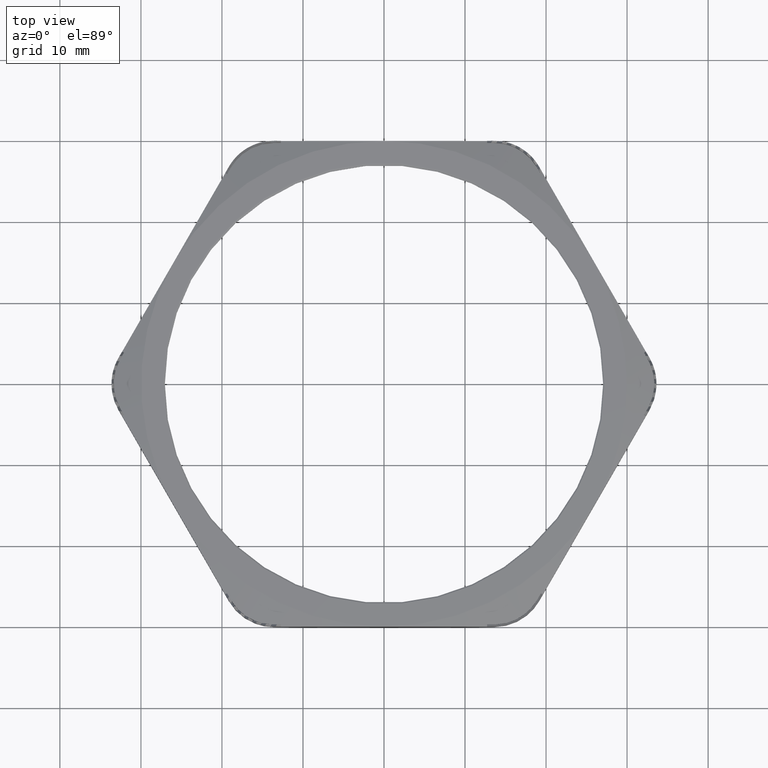
[diagram: clean part render]
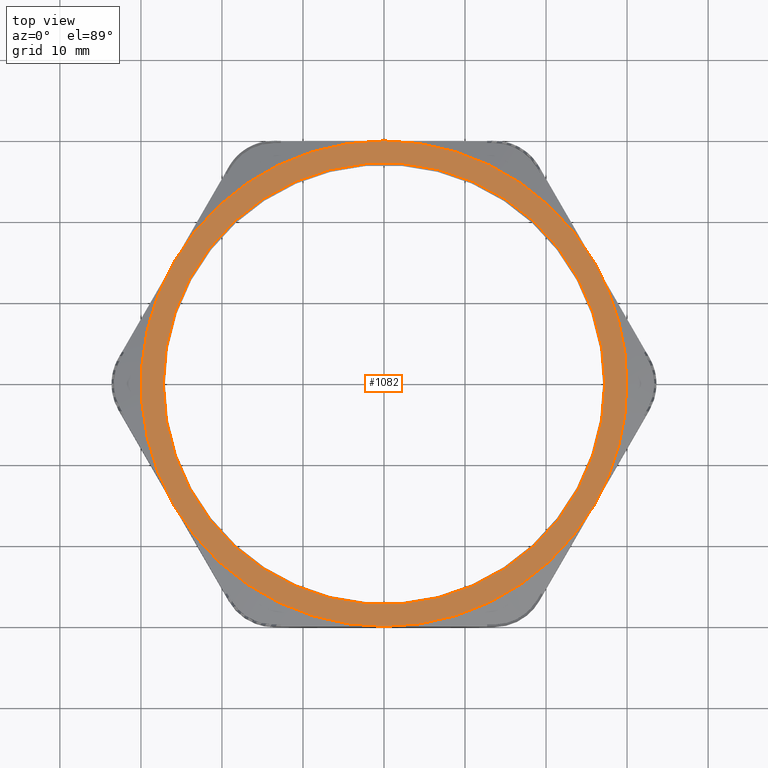
[diagram: same view with one face highlighted and labeled with its STEP entity id]
A machine part, top view. The second image highlights one B-rep face of the part: STEP entity #1082.
In plain terms, the highlighted planar face has unit normal (0, 0, -1).
Its self-contained STEP definition (entity closure, byte-faithful):
#121 = VERTEX_POINT ( 'NONE', #2904 ) ;
#209 = VERTEX_POINT ( 'NONE', #3067 ) ;
#256 = EDGE_CURVE ( 'NONE', #258, #209, #3186, .T. ) ;
#258 = VERTEX_POINT ( 'NONE', #3176 ) ;
#282 = VERTEX_POINT ( 'NONE', #3259 ) ;
#284 = VERTEX_POINT ( 'NONE', #3253 ) ;
#287 = EDGE_CURVE ( 'NONE', #282, #284, #3246, .T. ) ;
#654 = VERTEX_POINT ( 'NONE', #3963 ) ;
#719 = VERTEX_POINT ( 'NONE', #4080 ) ;
#759 = VERTEX_POINT ( 'NONE', #4156 ) ;
#851 = VERTEX_POINT ( 'NONE', #4357 ) ;
#1058 = ORIENTED_EDGE ( 'NONE', *, *, #287, .T. ) ;
#1059 = ORIENTED_EDGE ( 'NONE', *, *, #1060, .T. ) ;
#1060 = EDGE_CURVE ( 'NONE', #284, #282, #4816, .T. ) ;
#1061 = EDGE_LOOP ( 'NONE', ( #1062, #1064, #1066, #1068, #1070, #1130, #1131 ) ) ;
#1062 = ORIENTED_EDGE ( 'NONE', *, *, #1063, .F. ) ;
#1063 = EDGE_CURVE ( 'NONE', #121, #851, #4811, .T. ) ;
#1064 = ORIENTED_EDGE ( 'NONE', *, *, #1065, .F. ) ;
#1065 = EDGE_CURVE ( 'NONE', #654, #121, #4805, .T. ) ;
#1066 = ORIENTED_EDGE ( 'NONE', *, *, #1067, .F. ) ;
#1067 = EDGE_CURVE ( 'NONE', #719, #654, #4845, .T. ) ;
#1068 = ORIENTED_EDGE ( 'NONE', *, *, #1069, .F. ) ;
#1069 = EDGE_CURVE ( 'NONE', #759, #719, #4841, .T. ) ;
#1070 = ORIENTED_EDGE ( 'NONE', *, *, #1129, .F. ) ;
#1082 = ADVANCED_FACE ( 'NONE', ( #4850, #4849 ), #4874, .F. ) ;
#1083 = EDGE_LOOP ( 'NONE', ( #1058, #1059 ) ) ;
#1129 = EDGE_CURVE ( 'NONE', #209, #759, #4960, .T. ) ;
#1130 = ORIENTED_EDGE ( 'NONE', *, *, #256, .F. ) ;
#1131 = ORIENTED_EDGE ( 'NONE', *, *, #1132, .T. ) ;
#1132 = EDGE_CURVE ( 'NONE', #258, #851, #4956, .T. ) ;
#2904 = CARTESIAN_POINT ( 'NONE',  ( -1.021909976465637400, 0.5899999999999999700, 0.2000000000000000100 ) ) ;
#3067 = CARTESIAN_POINT ( 'NONE',  ( 1.179999999999999700, 0.0000000000000000000, 0.2000000000000000100 ) ) ;
#3176 = CARTESIAN_POINT ( 'NONE',  ( 1.021909976465637600, 0.5899999999999999700, 0.2000000000000000100 ) ) ;
#3182 = DIRECTION ( 'NONE',  ( -1.000000000000000000, 0.0000000000000000000, 0.0000000000000000000 ) ) ;
#3183 = DIRECTION ( 'NONE',  ( 0.0000000000000000000, 0.0000000000000000000, -1.000000000000000000 ) ) ;
#3184 = CARTESIAN_POINT ( 'NONE',  ( 0.0000000000000000000, 0.0000000000000000000, 0.2000000000000000100 ) ) ;
#3185 = AXIS2_PLACEMENT_3D ( 'NONE', #3184, #3183, #3182 ) ;
#3186 = CIRCLE ( 'NONE', #3185, 1.179999999999999700 ) ;
#3243 = DIRECTION ( 'NONE',  ( -1.000000000000000000, 0.0000000000000000000, 0.0000000000000000000 ) ) ;
#3244 = DIRECTION ( 'NONE',  ( 0.0000000000000000000, 0.0000000000000000000, -1.000000000000000000 ) ) ;
#3245 = AXIS2_PLACEMENT_3D ( 'NONE', #3252, #3244, #3243 ) ;
#3246 = CIRCLE ( 'NONE', #3245, 1.073000000000000000 ) ;
#3252 = CARTESIAN_POINT ( 'NONE',  ( 0.0000000000000000000, 0.0000000000000000000, 0.2000000000000000100 ) ) ;
#3253 = CARTESIAN_POINT ( 'NONE',  ( 1.073000000000000000, 1.314046015485109900E-016, 0.2000000000000000100 ) ) ;
#3259 = CARTESIAN_POINT ( 'NONE',  ( -1.073000000000000000, 0.0000000000000000000, 0.2000000000000000100 ) ) ;
#3963 = CARTESIAN_POINT ( 'NONE',  ( -1.021909976465637600, -0.5899999999999994100, 0.2000000000000000100 ) ) ;
#4080 = CARTESIAN_POINT ( 'NONE',  ( 2.365849761790800100E-016, -1.179999999999999900, 0.2000000000000000100 ) ) ;
#4156 = CARTESIAN_POINT ( 'NONE',  ( 1.021909976465637200, -0.5900000000000000800, 0.2000000000000000100 ) ) ;
#4357 = CARTESIAN_POINT ( 'NONE',  ( 1.182924880895400300E-016, 1.179999999999999900, 0.2000000000000000100 ) ) ;
#4803 = CARTESIAN_POINT ( 'NONE',  ( 0.0000000000000000000, 0.0000000000000000000, 0.2000000000000000100 ) ) ;
#4804 = AXIS2_PLACEMENT_3D ( 'NONE', #4803, #4847, #4846 ) ;
#4805 = CIRCLE ( 'NONE', #4804, 1.179999999999999700 ) ;
#4806 = CARTESIAN_POINT ( 'NONE',  ( 0.0000000000000000000, 0.0000000000000000000, 0.2000000000000000100 ) ) ;
#4807 = DIRECTION ( 'NONE',  ( -1.000000000000000000, 0.0000000000000000000, 0.0000000000000000000 ) ) ;
#4808 = DIRECTION ( 'NONE',  ( 0.0000000000000000000, 0.0000000000000000000, -1.000000000000000000 ) ) ;
#4809 = CARTESIAN_POINT ( 'NONE',  ( 0.0000000000000000000, 0.0000000000000000000, 0.2000000000000000100 ) ) ;
#4810 = AXIS2_PLACEMENT_3D ( 'NONE', #4809, #4808, #4807 ) ;
#4811 = CIRCLE ( 'NONE', #4810, 1.179999999999999700 ) ;
#4812 = DIRECTION ( 'NONE',  ( -1.000000000000000000, 0.0000000000000000000, 0.0000000000000000000 ) ) ;
#4813 = DIRECTION ( 'NONE',  ( 0.0000000000000000000, 0.0000000000000000000, -1.000000000000000000 ) ) ;
#4814 = CARTESIAN_POINT ( 'NONE',  ( 0.0000000000000000000, 0.0000000000000000000, 0.2000000000000000100 ) ) ;
#4815 = AXIS2_PLACEMENT_3D ( 'NONE', #4814, #4813, #4812 ) ;
#4816 = CIRCLE ( 'NONE', #4815, 1.073000000000000000 ) ;
#4837 = DIRECTION ( 'NONE',  ( -1.000000000000000000, 0.0000000000000000000, 0.0000000000000000000 ) ) ;
#4838 = DIRECTION ( 'NONE',  ( 0.0000000000000000000, 0.0000000000000000000, -1.000000000000000000 ) ) ;
#4839 = CARTESIAN_POINT ( 'NONE',  ( 0.0000000000000000000, 0.0000000000000000000, 0.2000000000000000100 ) ) ;
#4840 = AXIS2_PLACEMENT_3D ( 'NONE', #4839, #4838, #4837 ) ;
#4841 = CIRCLE ( 'NONE', #4840, 1.179999999999999700 ) ;
#4842 = DIRECTION ( 'NONE',  ( -1.000000000000000000, 0.0000000000000000000, 0.0000000000000000000 ) ) ;
#4843 = DIRECTION ( 'NONE',  ( 0.0000000000000000000, 0.0000000000000000000, -1.000000000000000000 ) ) ;
#4844 = AXIS2_PLACEMENT_3D ( 'NONE', #4806, #4843, #4842 ) ;
#4845 = CIRCLE ( 'NONE', #4844, 1.179999999999999700 ) ;
#4846 = DIRECTION ( 'NONE',  ( -1.000000000000000000, 0.0000000000000000000, 0.0000000000000000000 ) ) ;
#4847 = DIRECTION ( 'NONE',  ( 0.0000000000000000000, 0.0000000000000000000, -1.000000000000000000 ) ) ;
#4849 = FACE_OUTER_BOUND ( 'NONE', #1061, .T. ) ;
#4850 = FACE_BOUND ( 'NONE', #1083, .T. ) ;
#4870 = DIRECTION ( 'NONE',  ( -1.000000000000000000, 0.0000000000000000000, 0.0000000000000000000 ) ) ;
#4871 = DIRECTION ( 'NONE',  ( 0.0000000000000000000, 0.0000000000000000000, -1.000000000000000000 ) ) ;
#4872 = CARTESIAN_POINT ( 'NONE',  ( 0.0000000000000000000, 2.360000000000000800, 0.2000000000000000100 ) ) ;
#4873 = AXIS2_PLACEMENT_3D ( 'NONE', #4872, #4871, #4870 ) ;
#4874 = PLANE ( 'NONE',  #4873 ) ;
#4952 = DIRECTION ( 'NONE',  ( 1.000000000000000000, 0.0000000000000000000, 0.0000000000000000000 ) ) ;
#4953 = DIRECTION ( 'NONE',  ( 0.0000000000000000000, 0.0000000000000000000, 1.000000000000000000 ) ) ;
#4954 = CARTESIAN_POINT ( 'NONE',  ( 0.0000000000000000000, 0.0000000000000000000, 0.2000000000000000100 ) ) ;
#4955 = AXIS2_PLACEMENT_3D ( 'NONE', #4954, #4953, #4952 ) ;
#4956 = CIRCLE ( 'NONE', #4955, 1.179999999999999900 ) ;
#4957 = DIRECTION ( 'NONE',  ( -1.000000000000000000, 0.0000000000000000000, 0.0000000000000000000 ) ) ;
#4958 = DIRECTION ( 'NONE',  ( 0.0000000000000000000, 0.0000000000000000000, -1.000000000000000000 ) ) ;
#4959 = AXIS2_PLACEMENT_3D ( 'NONE', #4965, #4958, #4957 ) ;
#4960 = CIRCLE ( 'NONE', #4959, 1.179999999999999700 ) ;
#4965 = CARTESIAN_POINT ( 'NONE',  ( 0.0000000000000000000, 0.0000000000000000000, 0.2000000000000000100 ) ) ;